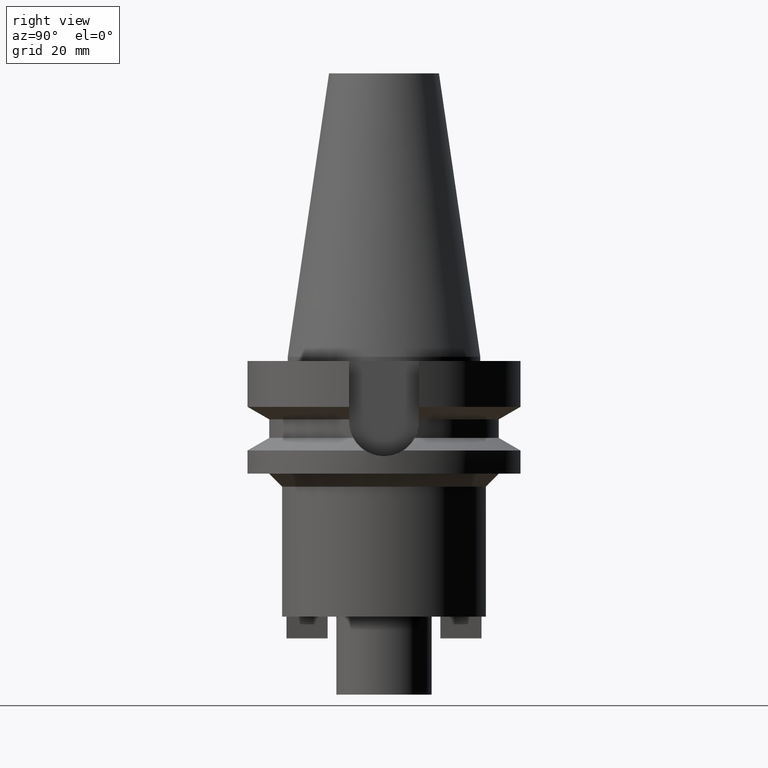
[diagram: clean part render]
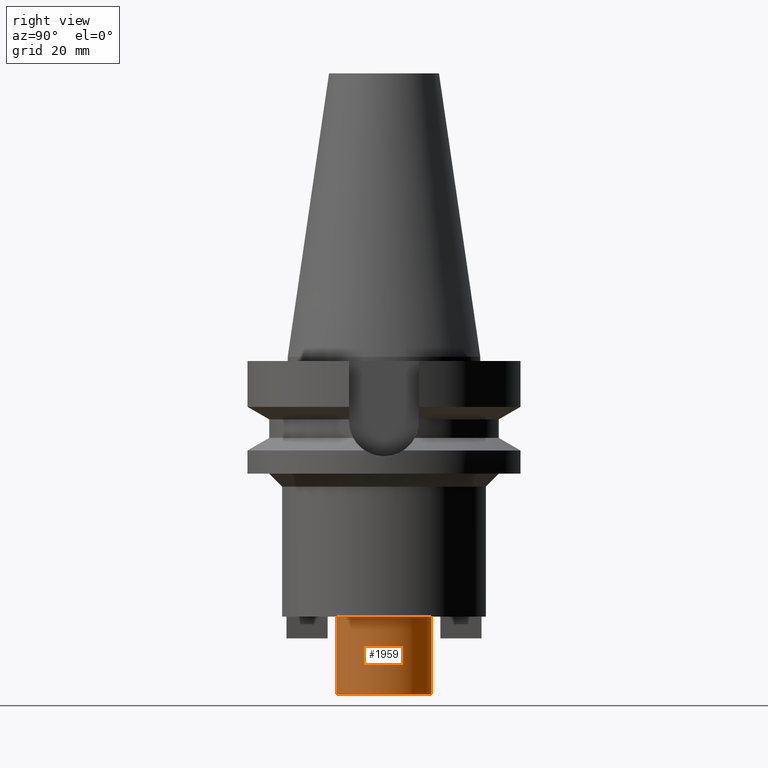
[diagram: same view with one face highlighted and labeled with its STEP entity id]
A machine part, right view. The second image highlights one B-rep face of the part: STEP entity #1959.
In plain terms, the highlighted cylindrical surface (partial cylindrical patch) has radius 11 mm, axis along (0, 0, -1).
Its self-contained STEP definition (entity closure, byte-faithful):
#728=CARTESIAN_POINT('',(0.E0,2.113372981289E-14,-6.E1));
#729=DIRECTION('',(0.E0,0.E0,-1.E0));
#730=DIRECTION('',(0.E0,1.E0,0.E0));
#731=AXIS2_PLACEMENT_3D('',#728,#729,#730);
#764=DIRECTION('',(0.E0,0.E0,-1.E0));
#765=VECTOR('',#764,1.8E1);
#766=CARTESIAN_POINT('',(0.E0,-1.1E1,-6.E1));
#767=LINE('',#766,#765);
#771=DIRECTION('',(0.E0,0.E0,-1.E0));
#772=VECTOR('',#771,1.8E1);
#773=CARTESIAN_POINT('',(0.E0,1.1E1,-6.E1));
#774=LINE('',#773,#772);
#778=CARTESIAN_POINT('',(0.E0,2.113372981289E-14,-7.8E1));
#779=DIRECTION('',(0.E0,0.E0,1.E0));
#780=DIRECTION('',(0.E0,-1.E0,0.E0));
#781=AXIS2_PLACEMENT_3D('',#778,#779,#780);
#1260=CARTESIAN_POINT('',(0.E0,-1.1E1,-7.8E1));
#1261=CARTESIAN_POINT('',(0.E0,1.1E1,-7.8E1));
#1262=VERTEX_POINT('',#1260);
#1263=VERTEX_POINT('',#1261);
#1264=CARTESIAN_POINT('',(0.E0,1.1E1,-6.E1));
#1265=VERTEX_POINT('',#1264);
#1266=CARTESIAN_POINT('',(0.E0,-1.1E1,-6.E1));
#1267=VERTEX_POINT('',#1266);
#1947=CARTESIAN_POINT('',(0.E0,2.113372981289E-14,7.257E1));
#1948=DIRECTION('',(0.E0,0.E0,-1.E0));
#1949=DIRECTION('',(0.E0,-1.E0,0.E0));
#1950=AXIS2_PLACEMENT_3D('',#1947,#1948,#1949);
#1951=CYLINDRICAL_SURFACE('',#1950,1.1E1);
#1952=ORIENTED_EDGE('',*,*,#1937,.T.);
#1954=ORIENTED_EDGE('',*,*,#1953,.F.);
#1955=ORIENTED_EDGE('',*,*,#1940,.F.);
#1956=ORIENTED_EDGE('',*,*,#1907,.F.);
#1957=EDGE_LOOP('',(#1952,#1954,#1955,#1956));
#1958=FACE_OUTER_BOUND('',#1957,.F.);
#732=CIRCLE('',#731,1.1E1);
#782=CIRCLE('',#781,1.1E1);
#1907=EDGE_CURVE('',#1265,#1267,#732,.T.);
#1937=EDGE_CURVE('',#1265,#1263,#774,.T.);
#1940=EDGE_CURVE('',#1267,#1262,#767,.T.);
#1953=EDGE_CURVE('',#1262,#1263,#782,.T.);
#1959=ADVANCED_FACE('',(#1958),#1951,.T.);